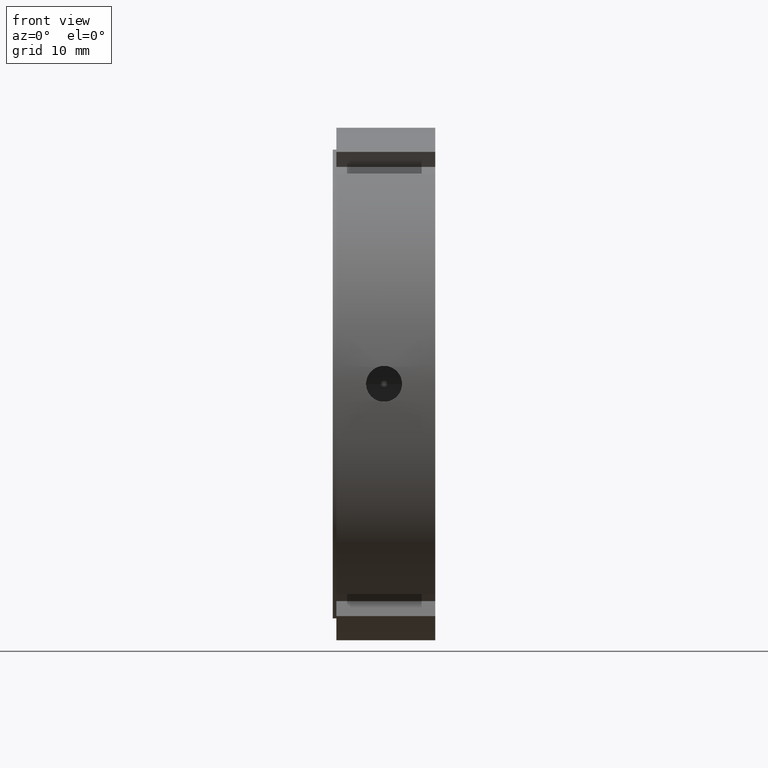
[diagram: clean part render]
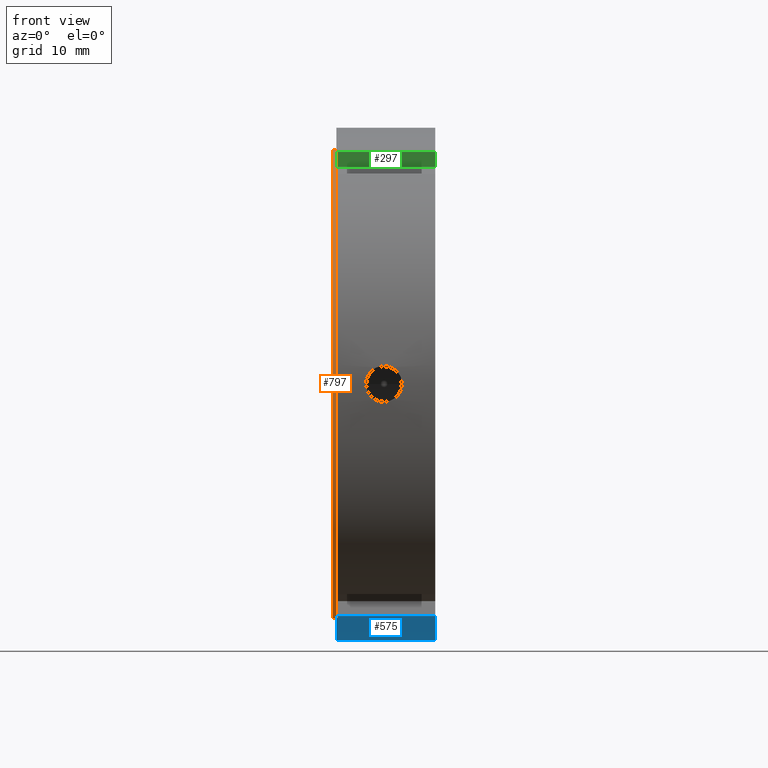
[diagram: same view with three faces highlighted in distinct colors, each labeled with its STEP entity id]
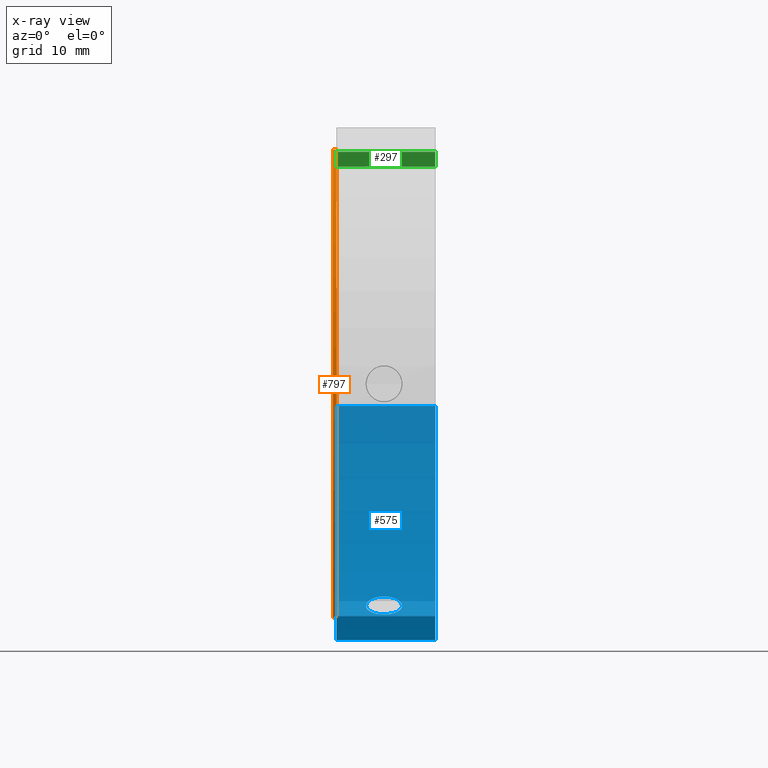
[diagram: x-ray of the same camera — body ghosted, the three highlighted faces saturated]
A machine part, front view with three faces highlighted in distinct colors.
The next image is the same camera in x-ray (body ghosted, the three faces saturated) — at least one of them is partly hidden behind the body in this view.
Their STEP definitions:

[orange] entity #797 — the highlighted cylindrical surface (bore or boss wall) has radius 32 mm, axis along (1, 0, 0).
#755=CARTESIAN_POINT('',(-8.881784E-015,32.0,0.0));
#756=VERTEX_POINT('',#755);
#757=CARTESIAN_POINT('',(-8.881784E-015,0.0,0.0));
#758=DIRECTION('',(1.0,0.0,0.0));
#759=DIRECTION('',(0.0,1.0,0.0));
#760=AXIS2_PLACEMENT_3D('',#757,#758,#759);
#761=CIRCLE('',#760,32.0);
#762=EDGE_CURVE('',#756,#756,#761,.T.);
#778=CARTESIAN_POINT('',(0.249999999999991,0.0,0.0));
#779=DIRECTION('',(1.0,0.0,0.0));
#780=DIRECTION('',(0.0,1.0,0.0));
#781=AXIS2_PLACEMENT_3D('',#778,#779,#780);
#782=CYLINDRICAL_SURFACE('',#781,32.0);
#783=CARTESIAN_POINT('',(0.499999999999992,32.0,0.0));
#784=VERTEX_POINT('',#783);
#785=CARTESIAN_POINT('',(0.499999999999992,0.0,0.0));
#786=DIRECTION('',(1.0,0.0,0.0));
#787=DIRECTION('',(0.0,1.0,0.0));
#788=AXIS2_PLACEMENT_3D('',#785,#786,#787);
#789=CIRCLE('',#788,32.0);
#790=EDGE_CURVE('',#784,#784,#789,.T.);
#791=ORIENTED_EDGE('',*,*,#790,.F.);
#792=EDGE_LOOP('',(#791));
#793=FACE_OUTER_BOUND('',#792,.T.);
#794=ORIENTED_EDGE('',*,*,#762,.T.);
#795=EDGE_LOOP('',(#794));
#796=FACE_BOUND('',#795,.T.);
#797=ADVANCED_FACE('',(#793,#796),#782,.T.);

[blue] entity #575 — the highlighted cylindrical surface (partial cylindrical patch) has radius 35 mm, axis along (1, 0, 0).
#113=CARTESIAN_POINT('',(0.499999999999994,-14.837519562809396,-31.699337741082985));
#114=VERTEX_POINT('',#113);
#123=CARTESIAN_POINT('',(13.999999999999995,-14.837519562809396,-31.699337741082985));
#124=VERTEX_POINT('',#123);
#125=CARTESIAN_POINT('',(13.999999999999995,-14.837519562809391,-31.699337741082985));
#126=DIRECTION('',(-1.0,0.0,0.0));
#127=VECTOR('',#126,13.500000000000000);
#128=LINE('',#125,#127);
#129=EDGE_CURVE('',#124,#114,#128,.T.);
#365=CARTESIAN_POINT('',(6.999999999999994,15.327650142385512,-31.465268807252059));
#366=VERTEX_POINT('',#365);
#367=CARTESIAN_POINT('',(6.999999999999993,15.327650142385510,-31.465268807252059));
#368=CARTESIAN_POINT('',(7.308803977342718,15.327650142385510,-31.465268807252059));
#369=CARTESIAN_POINT('',(7.638121638273498,15.383373905405602,-31.438314449220485));
#370=CARTESIAN_POINT('',(8.243815084881783,15.608845292584945,-31.326981289616803));
#371=CARTESIAN_POINT('',(8.520199516624384,15.778470129702683,-31.242400983292686));
#372=CARTESIAN_POINT('',(8.956644346498578,16.167294767403085,-31.042975351275956));
#373=CARTESIAN_POINT('',(9.145834056158352,16.412426408640471,-30.914786784620141));
#374=CARTESIAN_POINT('',(9.396764694186134,16.945117471653884,-30.626047352351364));
#375=CARTESIAN_POINT('',(9.458499999999994,17.232568131386653,-30.465290993789154));
#376=CARTESIAN_POINT('',(9.458499999999994,17.767431868613333,-30.156487271121559));
#377=CARTESIAN_POINT('',(9.396764694186132,18.050376288814469,-29.987925876739496));
#378=CARTESIAN_POINT('',(9.145834056158350,18.566777503740230,-29.670971599935328));
#379=CARTESIAN_POINT('',(8.956644346498580,18.800357879557581,-29.522775654680288));
#380=CARTESIAN_POINT('',(8.520199516624386,19.167477861900036,-29.285756456822824));
#381=CARTESIAN_POINT('',(8.243815084881783,19.325538974395457,-29.181147191928126));
#382=CARTESIAN_POINT('',(7.638121638273498,19.534692012485507,-29.041549822606139));
#383=CARTESIAN_POINT('',(7.308803977342720,19.585897052793598,-29.006768807252065));
#384=CARTESIAN_POINT('',(6.691196022657269,19.585897052793598,-29.006768807252065));
#385=CARTESIAN_POINT('',(6.361878361726489,19.534692012485507,-29.041549822606139));
#386=CARTESIAN_POINT('',(5.756184915118205,19.325538974395457,-29.181147191928126));
#387=CARTESIAN_POINT('',(5.479800483375604,19.167477861900039,-29.285756456822813));
#388=CARTESIAN_POINT('',(5.043355653501407,18.800357879557584,-29.522775654680281));
#389=CARTESIAN_POINT('',(4.854165943841641,18.566777503740227,-29.670971599935324));
#390=CARTESIAN_POINT('',(4.603235305813857,18.050376288814466,-29.987925876739489));
#391=CARTESIAN_POINT('',(4.541499999999994,17.767431868613333,-30.156487271121559));
#392=CARTESIAN_POINT('',(4.541499999999994,17.232568131386653,-30.465290993789154));
#393=CARTESIAN_POINT('',(4.603235305813854,16.945117471653887,-30.626047352351364));
#394=CARTESIAN_POINT('',(4.854165943841636,16.412426408640474,-30.914786784620141));
#395=CARTESIAN_POINT('',(5.043355653501407,16.167294767403085,-31.042975351275960));
#396=CARTESIAN_POINT('',(5.479800483375602,15.778470129702683,-31.242400983292686));
#397=CARTESIAN_POINT('',(5.756184915118205,15.608845292584945,-31.326981289616803));
#398=CARTESIAN_POINT('',(6.361878361726490,15.383373905405602,-31.438314449220485));
#399=CARTESIAN_POINT('',(6.691196022657268,15.327650142385510,-31.465268807252059));
#400=CARTESIAN_POINT('',(6.999999999999994,15.327650142385510,-31.465268807252059));
#401=B_SPLINE_CURVE_WITH_KNOTS('',3,(#367,#368,#369,#370,#371,#372,#373,#374,#375,#376,#377,#378,#379,#380,#381,#382,#383,#384,#385,#386,#387,#388,#389,#390,#391,#392,#393,#394,#395,#396,#397,#398,#399,#400),.UNSPECIFIED.,.T.,.U.,(4,2,2,2,2,2,2,2,2,2,2,2,2,2,2,2,4),(0.0,0.092641193202818,0.185282386405636,0.277923503205914,0.370564620006191,0.463205736806469,0.555846853606747,0.648488046809564,0.741129240012382,0.833770433215200,0.926411626418017,1.019052743218295,1.111693860018574,1.204334976818851,1.296976093619129,1.389617286821947,1.482258480024765),.UNSPECIFIED.);
#402=EDGE_CURVE('',#366,#366,#401,.T.);
#456=CARTESIAN_POINT('',(13.999999999999995,34.871191548325385,-2.999999999999999));
#457=VERTEX_POINT('',#456);
#458=CARTESIAN_POINT('',(13.999999999999993,0.0,0.0));
#459=DIRECTION('',(1.0,0.0,0.0));
#460=DIRECTION('',(0.0,1.0,0.0));
#461=AXIS2_PLACEMENT_3D('',#458,#459,#460);
#462=CIRCLE('',#461,35.0);
#463=EDGE_CURVE('',#124,#457,#462,.T.);
#548=CARTESIAN_POINT('',(7.249999999999993,0.0,0.0));
#549=DIRECTION('',(1.0,0.0,0.0));
#550=DIRECTION('',(0.0,1.0,0.0));
#551=AXIS2_PLACEMENT_3D('',#548,#549,#550);
#552=CYLINDRICAL_SURFACE('',#551,35.0);
#553=ORIENTED_EDGE('',*,*,#129,.T.);
#554=CARTESIAN_POINT('',(0.499999999999994,34.871191548325385,-2.999999999999999));
#555=VERTEX_POINT('',#554);
#556=CARTESIAN_POINT('',(0.499999999999994,0.0,0.0));
#557=DIRECTION('',(1.0,0.0,0.0));
#558=DIRECTION('',(0.0,1.0,0.0));
#559=AXIS2_PLACEMENT_3D('',#556,#557,#558);
#560=CIRCLE('',#559,34.999999999999993);
#561=EDGE_CURVE('',#114,#555,#560,.T.);
#562=ORIENTED_EDGE('',*,*,#561,.T.);
#563=CARTESIAN_POINT('',(0.499999999999994,34.871191548325385,-2.999999999999999));
#564=DIRECTION('',(1.0,0.0,0.0));
#565=VECTOR('',#564,13.500000000000000);
#566=LINE('',#563,#565);
#567=EDGE_CURVE('',#555,#457,#566,.T.);
#568=ORIENTED_EDGE('',*,*,#567,.T.);
#569=ORIENTED_EDGE('',*,*,#463,.F.);
#570=EDGE_LOOP('',(#553,#562,#568,#569));
#571=FACE_OUTER_BOUND('',#570,.T.);
#572=ORIENTED_EDGE('',*,*,#402,.T.);
#573=EDGE_LOOP('',(#572));
#574=FACE_BOUND('',#573,.T.);
#575=ADVANCED_FACE('',(#571,#574),#552,.T.);

[green] entity #297 — the highlighted planar face has unit normal (0, 0.866, 0.5).
#258=CARTESIAN_POINT('',(13.999999999999995,-13.651923788646680,29.645825622994263));
#259=DIRECTION('',(0.0,0.866025403784439,0.500000000000000));
#260=DIRECTION('',(-1.0,0.0,0.0));
#261=AXIS2_PLACEMENT_3D('',#258,#259,#260);
#262=PLANE('',#261);
#263=CARTESIAN_POINT('',(0.499999999999994,-13.651923788646680,29.645825622994263));
#264=VERTEX_POINT('',#263);
#265=CARTESIAN_POINT('',(0.499999999999994,-14.837519562809369,31.699337741082999));
#266=VERTEX_POINT('',#265);
#267=CARTESIAN_POINT('',(0.499999999999993,-13.651923788646680,29.645825622994263));
#268=DIRECTION('',(0.0,-0.500000000000001,0.866025403784438));
#269=VECTOR('',#268,2.371191548325382);
#270=LINE('',#267,#269);
#271=EDGE_CURVE('',#264,#266,#270,.T.);
#272=ORIENTED_EDGE('',*,*,#271,.F.);
#273=CARTESIAN_POINT('',(13.999999999999995,-13.651923788646680,29.645825622994263));
#274=VERTEX_POINT('',#273);
#275=CARTESIAN_POINT('',(13.999999999999995,-13.651923788646680,29.645825622994263));
#276=DIRECTION('',(-1.0,0.0,0.0));
#277=VECTOR('',#276,13.500000000000000);
#278=LINE('',#275,#277);
#279=EDGE_CURVE('',#274,#264,#278,.T.);
#280=ORIENTED_EDGE('',*,*,#279,.F.);
#281=CARTESIAN_POINT('',(13.999999999999995,-14.837519562809371,31.699337741082999));
#282=VERTEX_POINT('',#281);
#283=CARTESIAN_POINT('',(13.999999999999995,-14.837519562809373,31.699337741083010));
#284=DIRECTION('',(0.0,0.499999999999999,-0.866025403784439));
#285=VECTOR('',#284,2.371191548325388);
#286=LINE('',#283,#285);
#287=EDGE_CURVE('',#282,#274,#286,.T.);
#288=ORIENTED_EDGE('',*,*,#287,.F.);
#289=CARTESIAN_POINT('',(0.499999999999994,-14.837519562809369,31.699337741082996));
#290=DIRECTION('',(1.0,0.0,0.0));
#291=VECTOR('',#290,13.500000000000000);
#292=LINE('',#289,#291);
#293=EDGE_CURVE('',#266,#282,#292,.T.);
#294=ORIENTED_EDGE('',*,*,#293,.F.);
#295=EDGE_LOOP('',(#272,#280,#288,#294));
#296=FACE_OUTER_BOUND('',#295,.T.);
#297=ADVANCED_FACE('',(#296),#262,.F.);